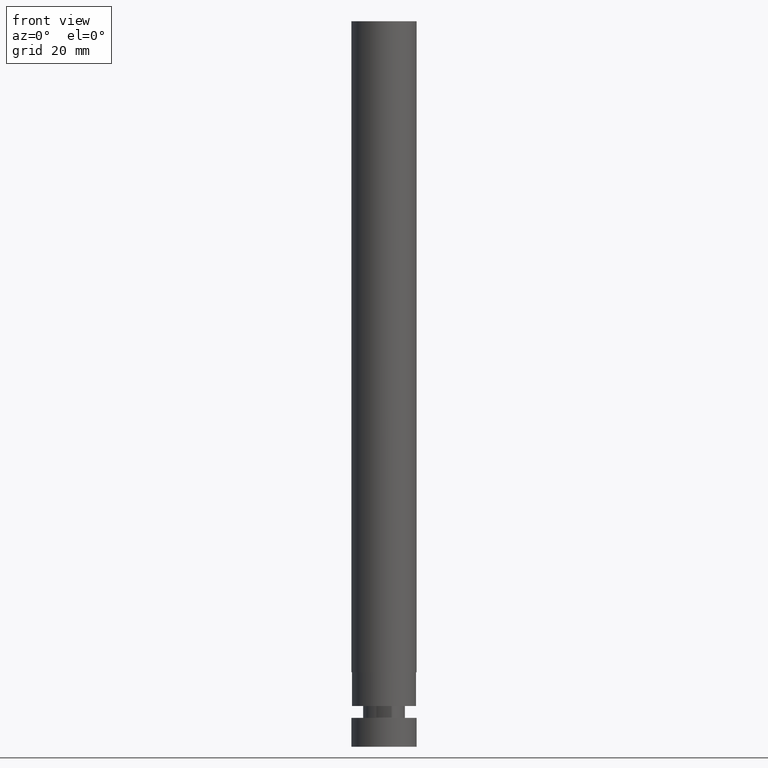
[diagram: clean part render]
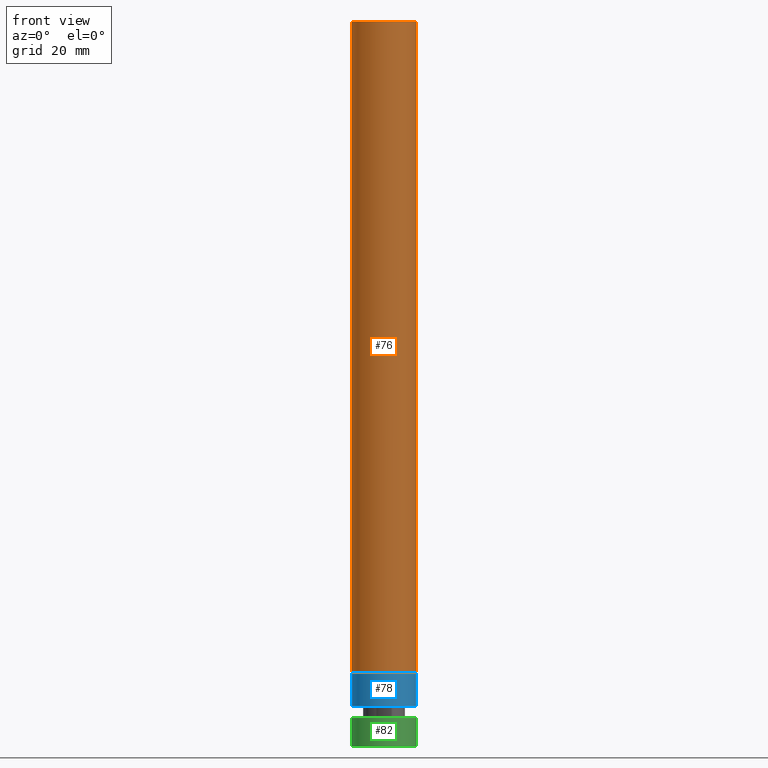
[diagram: same view with three faces highlighted in distinct colors, each labeled with its STEP entity id]
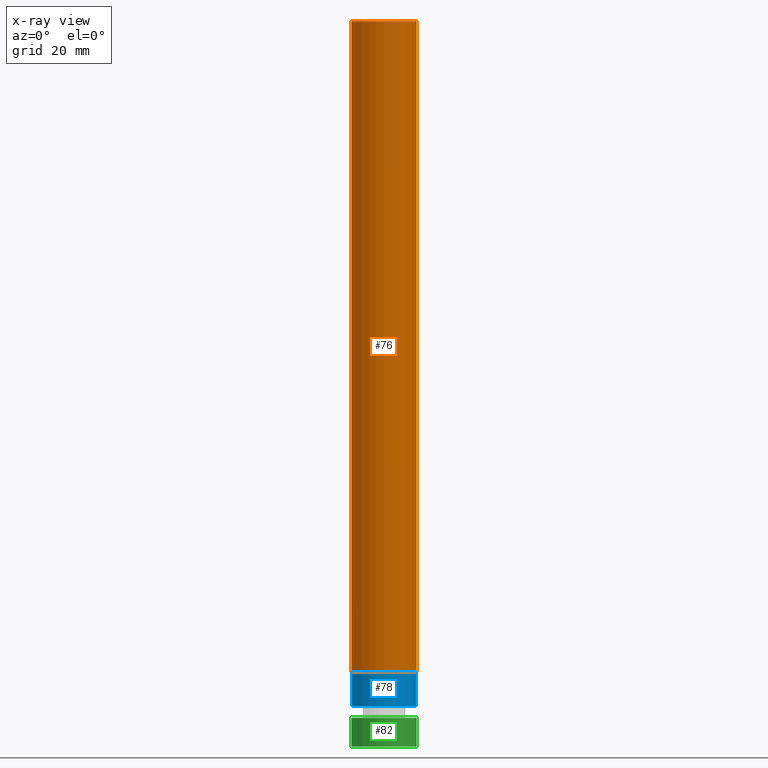
[diagram: x-ray of the same camera — body ghosted, the three highlighted faces saturated]
A machine part, front view with three faces highlighted in distinct colors.
The next image is the same camera in x-ray (body ghosted, the three faces saturated) — at least one of them is partly hidden behind the body in this view.
Their STEP definitions:

[orange] entity #76 — the highlighted cylindrical surface (bore or boss wall) has radius 12.5 mm, axis along (-0, -0, 1).
#76=ADVANCED_FACE('',(#87,#88),#89,.T.);
#87=FACE_BOUND('',#112,.T.);
#88=FACE_BOUND('',#113,.T.);
#89=CYLINDRICAL_SURFACE('',#114,12.5);
#112=EDGE_LOOP('',(#139));
#113=EDGE_LOOP('',(#140));
#114=AXIS2_PLACEMENT_3D('',#141,#142,#143);
#139=ORIENTED_EDGE('',*,*,#179,.F.);
#140=ORIENTED_EDGE('',*,*,#178,.T.);
#141=CARTESIAN_POINT('',(-9.31792142586079E-015,-1.86358428517216E-014,152.17320508));
#142=DIRECTION('',(-6.12323399573677E-017,-1.22464679914735E-016,1.0));
#143=DIRECTION('',(-1.23259516440783E-032,1.0,1.22464679914735E-016));
#178=EDGE_CURVE('',#186,#186,#187,.T.);
#179=EDGE_CURVE('',#188,#188,#189,.T.);
#186=VERTEX_POINT('',#202);
#187=CIRCLE('',#203,12.5);
#188=VERTEX_POINT('',#204);
#189=CIRCLE('',#205,12.5);
#202=CARTESIAN_POINT('',(-1.69001258282335E-014,12.5,276.0));
#203=AXIS2_PLACEMENT_3D('',#218,#219,#220);
#204=CARTESIAN_POINT('',(-1.7357170234881E-015,12.5,28.34641016));
#205=AXIS2_PLACEMENT_3D('',#221,#222,#223);
#218=CARTESIAN_POINT('',(-1.69001258282335E-014,-3.38002516564669E-014,276.0));
#219=DIRECTION('',(6.12323399573677E-017,1.22464679914735E-016,-1.0));
#220=DIRECTION('',(-1.23259516440783E-032,1.0,1.22464679914735E-016));
#221=CARTESIAN_POINT('',(-1.7357170234881E-015,-3.4714340469762E-015,28.34641016));
#222=DIRECTION('',(6.12323399573677E-017,1.22464679914735E-016,-1.0));
#223=DIRECTION('',(-1.23259516440783E-032,1.0,1.22464679914735E-016));

[blue] entity #78 — the highlighted cylindrical surface (bore or boss wall) has radius 12.25 mm, axis along (-0, -0, 1).
#78=ADVANCED_FACE('',(#93,#94),#95,.T.);
#93=FACE_BOUND('',#118,.T.);
#94=FACE_BOUND('',#119,.T.);
#95=CYLINDRICAL_SURFACE('',#120,12.25);
#118=EDGE_LOOP('',(#149));
#119=EDGE_LOOP('',(#150));
#120=AXIS2_PLACEMENT_3D('',#151,#152,#153);
#149=ORIENTED_EDGE('',*,*,#181,.F.);
#150=ORIENTED_EDGE('',*,*,#180,.T.);
#151=CARTESIAN_POINT('',(-1.34240914641365E-015,-2.6848182928273E-015,21.92320508));
#152=DIRECTION('',(-6.12323399573677E-017,-1.22464679914735E-016,1.0));
#153=DIRECTION('',(-1.23259516440783E-032,1.0,1.22464679914735E-016));
#180=EDGE_CURVE('',#190,#190,#191,.T.);
#181=EDGE_CURVE('',#192,#192,#193,.T.);
#190=VERTEX_POINT('',#206);
#191=CIRCLE('',#207,12.25);
#192=VERTEX_POINT('',#208);
#193=CIRCLE('',#209,12.25);
#206=CARTESIAN_POINT('',(-1.7357170234881E-015,12.25,28.34641016));
#207=AXIS2_PLACEMENT_3D('',#224,#225,#226);
#208=CARTESIAN_POINT('',(-9.49101269339201E-016,12.25,15.5));
#209=AXIS2_PLACEMENT_3D('',#227,#228,#229);
#224=CARTESIAN_POINT('',(-1.7357170234881E-015,-3.4714340469762E-015,28.34641016));
#225=DIRECTION('',(6.12323399573677E-017,1.22464679914735E-016,-1.0));
#226=DIRECTION('',(-1.23259516440783E-032,1.0,1.22464679914735E-016));
#227=CARTESIAN_POINT('',(-9.49101269339201E-016,-1.89820253867839E-015,15.5));
#228=DIRECTION('',(6.12323399573677E-017,1.22464679914735E-016,-1.0));
#229=DIRECTION('',(-1.23259516440783E-032,1.0,1.22464679914735E-016));

[green] entity #82 — the highlighted cylindrical surface (bore or boss wall) has radius 12.5 mm, axis along (-0, -0, 1).
#82=ADVANCED_FACE('',(#105,#106),#107,.T.);
#105=FACE_BOUND('',#130,.T.);
#106=FACE_BOUND('',#131,.T.);
#107=CYLINDRICAL_SURFACE('',#132,12.5);
#130=EDGE_LOOP('',(#169));
#131=EDGE_LOOP('',(#170));
#132=AXIS2_PLACEMENT_3D('',#171,#172,#173);
#169=ORIENTED_EDGE('',*,*,#185,.F.);
#170=ORIENTED_EDGE('',*,*,#184,.T.);
#171=CARTESIAN_POINT('',(-3.36777869765525E-016,-6.73555739531043E-016,5.5));
#172=DIRECTION('',(-6.12323399573677E-017,-1.22464679914735E-016,1.0));
#173=DIRECTION('',(-1.23259516440783E-032,1.0,1.22464679914735E-016));
#184=EDGE_CURVE('',#198,#198,#199,.T.);
#185=EDGE_CURVE('',#200,#200,#201,.T.);
#198=VERTEX_POINT('',#214);
#199=CIRCLE('',#215,12.5);
#200=VERTEX_POINT('',#216);
#201=CIRCLE('',#217,12.5);
#214=CARTESIAN_POINT('',(-6.73555739531046E-016,12.5,11.0));
#215=AXIS2_PLACEMENT_3D('',#236,#237,#238);
#216=CARTESIAN_POINT('',(0.0,12.5,0.0));
#217=AXIS2_PLACEMENT_3D('',#239,#240,#241);
#236=CARTESIAN_POINT('',(-6.73555739531046E-016,-1.34711147906209E-015,11.0));
#237=DIRECTION('',(6.12323399573677E-017,1.22464679914735E-016,-1.0));
#238=DIRECTION('',(-1.23259516440783E-032,1.0,1.22464679914735E-016));
#239=CARTESIAN_POINT('',(0.0,0.0,0.0));
#240=DIRECTION('',(6.12323399573677E-017,1.22464679914735E-016,-1.0));
#241=DIRECTION('',(-1.23259516440783E-032,1.0,1.22464679914735E-016));